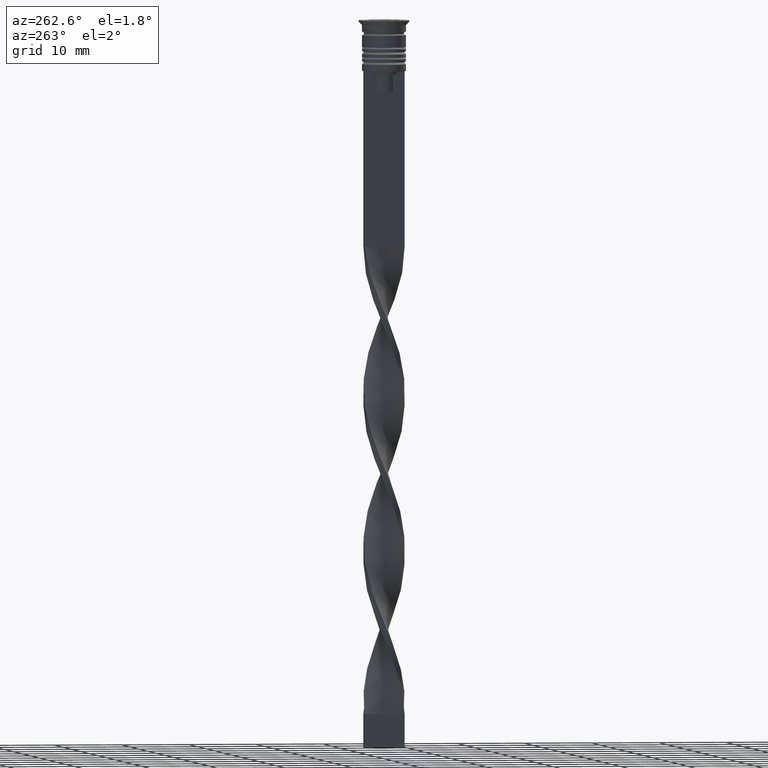
[diagram: clean part render]
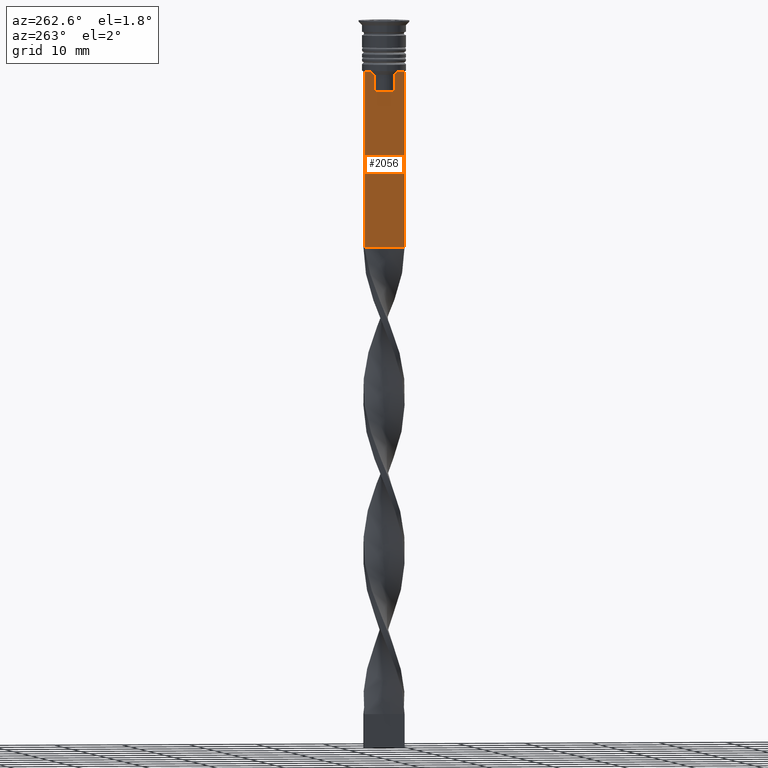
[diagram: same view with one face highlighted and labeled with its STEP entity id]
A machine part, auxiliary view. The second image highlights one B-rep face of the part: STEP entity #2056.
In plain terms, the highlighted planar face has unit normal (-1, 0, 0).
Its self-contained STEP definition (entity closure, byte-faithful):
#74 = DIRECTION ( 'NONE',  ( 0.000000000000000000, 1.000000000000000000, 0.000000000000000000 ) ) ;
#98 = EDGE_CURVE ( 'NONE', #2256, #762, #1155, .T. ) ;
#101 = CARTESIAN_POINT ( 'NONE',  ( -0.5000000000000001110, -3.000000000000000000, -7.500000000000000000 ) ) ;
#124 = CARTESIAN_POINT ( 'NONE',  ( -0.5000000000000001110, -3.000000000000000000, -33.50000000000000000 ) ) ;
#213 = CARTESIAN_POINT ( 'NONE',  ( -0.5000000000000001110, 1.650000000000003464, -10.49999999999999822 ) ) ;
#223 = DIRECTION ( 'NONE',  ( 0.000000000000000000, 0.000000000000000000, -1.000000000000000000 ) ) ;
#274 = EDGE_CURVE ( 'NONE', #379, #2736, #1505, .T. ) ;
#288 = ORIENTED_EDGE ( 'NONE', *, *, #991, .F. ) ;
#308 = B_SPLINE_CURVE_WITH_KNOTS ( 'NONE', 3,
 ( #982, #1268, #1283, #1300 ),
 .UNSPECIFIED., .F., .F.,
 ( 4, 4 ),
 ( 0.003696428037903516997, 0.004416830248125220952 ),
 .UNSPECIFIED. ) ;
#327 = EDGE_LOOP ( 'NONE', ( #2934, #288, #2701, #1247, #1363, #1351, #3022, #3238, #2680, #1494 ) ) ;
#379 = VERTEX_POINT ( 'NONE', #3059 ) ;
#420 = VECTOR ( 'NONE', #2419, 1000.000000000000000 ) ;
#459 = EDGE_CURVE ( 'NONE', #2736, #3285, #2016, .T. ) ;
#529 = VERTEX_POINT ( 'NONE', #1603 ) ;
#544 = DIRECTION ( 'NONE',  ( 0.000000000000000000, -1.000000000000000000, 0.000000000000000000 ) ) ;
#558 = CARTESIAN_POINT ( 'NONE',  ( -0.5000000000000001110, -3.000000000000000000, -7.500000000000000000 ) ) ;
#624 = VECTOR ( 'NONE', #1124, 1000.000000000000000 ) ;
#686 = DIRECTION ( 'NONE',  ( 0.000000000000000000, 0.000000000000000000, -1.000000000000000000 ) ) ;
#762 = VERTEX_POINT ( 'NONE', #124 ) ;
#903 = VERTEX_POINT ( 'NONE', #2694 ) ;
#905 = CARTESIAN_POINT ( 'NONE',  ( -0.5000000000000001110, 1.572418519351642230, -10.49999999999999822 ) ) ;
#982 = CARTESIAN_POINT ( 'NONE',  ( -0.5000000000000001110, 2.091052366632653481, -7.500000000000000000 ) ) ;
#991 = EDGE_CURVE ( 'NONE', #2476, #529, #2206, .T. ) ;
#1004 = AXIS2_PLACEMENT_3D ( 'NONE', #2749, #1716, #3067 ) ;
#1067 = CARTESIAN_POINT ( 'NONE',  ( -0.5000000000000001110, -1.572418519351642230, -8.000000000000000000 ) ) ;
#1075 = EDGE_CURVE ( 'NONE', #903, #1788, #1254, .T. ) ;
#1124 = DIRECTION ( 'NONE',  ( 0.000000000000000000, -1.000000000000000000, 0.000000000000000000 ) ) ;
#1155 = LINE ( 'NONE', #2760, #1206 ) ;
#1206 = VECTOR ( 'NONE', #686, 1000.000000000000000 ) ;
#1247 = ORIENTED_EDGE ( 'NONE', *, *, #2649, .F. ) ;
#1254 = LINE ( 'NONE', #1988, #3115 ) ;
#1268 = CARTESIAN_POINT ( 'NONE',  ( -0.5000000000000001110, 1.918907889994530658, -7.667424704779945976 ) ) ;
#1283 = CARTESIAN_POINT ( 'NONE',  ( -0.5000000000000001110, 1.746261636039132092, -7.834330826581080487 ) ) ;
#1300 = CARTESIAN_POINT ( 'NONE',  ( -0.5000000000000001110, 1.572418519351642230, -8.000000000000000000 ) ) ;
#1331 = VECTOR ( 'NONE', #74, 1000.000000000000000 ) ;
#1351 = ORIENTED_EDGE ( 'NONE', *, *, #2295, .F. ) ;
#1361 = CARTESIAN_POINT ( 'NONE',  ( -0.5000000000000001110, -3.000000000000000000, -7.500000000000000000 ) ) ;
#1363 = ORIENTED_EDGE ( 'NONE', *, *, #98, .F. ) ;
#1386 = VECTOR ( 'NONE', #1943, 1000.000000000000000 ) ;
#1409 = CARTESIAN_POINT ( 'NONE',  ( -0.5000000000000001110, -1.572418519351642230, -8.000000000000000000 ) ) ;
#1494 = ORIENTED_EDGE ( 'NONE', *, *, #1075, .F. ) ;
#1505 = LINE ( 'NONE', #2074, #3268 ) ;
#1603 = CARTESIAN_POINT ( 'NONE',  ( -0.5000000000000001110, 2.091052366632653481, -7.500000000000000000 ) ) ;
#1711 = LINE ( 'NONE', #213, #1386 ) ;
#1716 = DIRECTION ( 'NONE',  ( -1.000000000000000000, 0.000000000000000000, 0.000000000000000000 ) ) ;
#1724 = LINE ( 'NONE', #558, #2301 ) ;
#1788 = VERTEX_POINT ( 'NONE', #905 ) ;
#1895 = CARTESIAN_POINT ( 'NONE',  ( -0.5000000000000001110, -1.746240429054158660, -7.834351036433149673 ) ) ;
#1943 = DIRECTION ( 'NONE',  ( 0.000000000000000000, -1.000000000000000000, 0.000000000000000000 ) ) ;
#1988 = CARTESIAN_POINT ( 'NONE',  ( -0.5000000000000001110, 1.572418519351642230, 0.000000000000000000 ) ) ;
#2016 = B_SPLINE_CURVE_WITH_KNOTS ( 'NONE', 3,
 ( #1067, #1895, #2379, #2658 ),
 .UNSPECIFIED., .F., .F.,
 ( 4, 4 ),
 ( 0.008356915209744724543, 0.009073319521387648162 ),
 .UNSPECIFIED. ) ;
#2029 = PLANE ( 'NONE',  #1004 ) ;
#2056 = ADVANCED_FACE ( 'NONE', ( #2294 ), #2029, .T. ) ;
#2074 = CARTESIAN_POINT ( 'NONE',  ( -0.5000000000000001110, -1.572418519351642230, 0.000000000000000000 ) ) ;
#2167 = CARTESIAN_POINT ( 'NONE',  ( -0.5000000000000001110, -3.000000000000000000, -33.50000000000000000 ) ) ;
#2174 = CARTESIAN_POINT ( 'NONE',  ( -0.5000000000000001110, -2.091052366632653481, -7.500000000000000000 ) ) ;
#2206 = LINE ( 'NONE', #101, #624 ) ;
#2256 = VERTEX_POINT ( 'NONE', #1361 ) ;
#2294 = FACE_OUTER_BOUND ( 'NONE', #327, .T. ) ;
#2295 = EDGE_CURVE ( 'NONE', #3285, #2256, #1724, .T. ) ;
#2301 = VECTOR ( 'NONE', #544, 1000.000000000000000 ) ;
#2379 = CARTESIAN_POINT ( 'NONE',  ( -0.5000000000000001110, -1.918909712772151721, -7.667422931978337353 ) ) ;
#2419 = DIRECTION ( 'NONE',  ( 0.000000000000000000, 0.000000000000000000, -1.000000000000000000 ) ) ;
#2459 = LINE ( 'NONE', #2167, #1331 ) ;
#2476 = VERTEX_POINT ( 'NONE', #2549 ) ;
#2549 = CARTESIAN_POINT ( 'NONE',  ( -0.5000000000000001110, 3.000000000000000000, -7.500000000000000000 ) ) ;
#2600 = EDGE_CURVE ( 'NONE', #529, #903, #308, .T. ) ;
#2649 = EDGE_CURVE ( 'NONE', #762, #2656, #2459, .T. ) ;
#2656 = VERTEX_POINT ( 'NONE', #2950 ) ;
#2658 = CARTESIAN_POINT ( 'NONE',  ( -0.5000000000000001110, -2.091052366632653481, -7.500000000000000000 ) ) ;
#2680 = ORIENTED_EDGE ( 'NONE', *, *, #3028, .F. ) ;
#2694 = CARTESIAN_POINT ( 'NONE',  ( -0.5000000000000001110, 1.572418519351642230, -8.000000000000000000 ) ) ;
#2701 = ORIENTED_EDGE ( 'NONE', *, *, #3299, .T. ) ;
#2736 = VERTEX_POINT ( 'NONE', #1409 ) ;
#2749 = CARTESIAN_POINT ( 'NONE',  ( -0.5000000000000001110, -3.000000000000000000, -1.417237469701779329 ) ) ;
#2760 = CARTESIAN_POINT ( 'NONE',  ( -0.5000000000000001110, -3.000000000000000000, -1.417237469701779329 ) ) ;
#2934 = ORIENTED_EDGE ( 'NONE', *, *, #2600, .F. ) ;
#2940 = CARTESIAN_POINT ( 'NONE',  ( -0.5000000000000001110, 3.000000000000000000, -1.417237469701779329 ) ) ;
#2950 = CARTESIAN_POINT ( 'NONE',  ( -0.5000000000000001110, 3.000000000000000000, -33.50000000000000000 ) ) ;
#2960 = LINE ( 'NONE', #2940, #420 ) ;
#3022 = ORIENTED_EDGE ( 'NONE', *, *, #459, .F. ) ;
#3028 = EDGE_CURVE ( 'NONE', #1788, #379, #1711, .T. ) ;
#3059 = CARTESIAN_POINT ( 'NONE',  ( -0.5000000000000001110, -1.572418519351642230, -10.49999999999999822 ) ) ;
#3067 = DIRECTION ( 'NONE',  ( 0.000000000000000000, 0.000000000000000000, 1.000000000000000000 ) ) ;
#3115 = VECTOR ( 'NONE', #223, 1000.000000000000000 ) ;
#3238 = ORIENTED_EDGE ( 'NONE', *, *, #274, .F. ) ;
#3268 = VECTOR ( 'NONE', #3357, 1000.000000000000000 ) ;
#3285 = VERTEX_POINT ( 'NONE', #2174 ) ;
#3299 = EDGE_CURVE ( 'NONE', #2476, #2656, #2960, .T. ) ;
#3357 = DIRECTION ( 'NONE',  ( -0.000000000000000000, -0.000000000000000000, 1.000000000000000000 ) ) ;